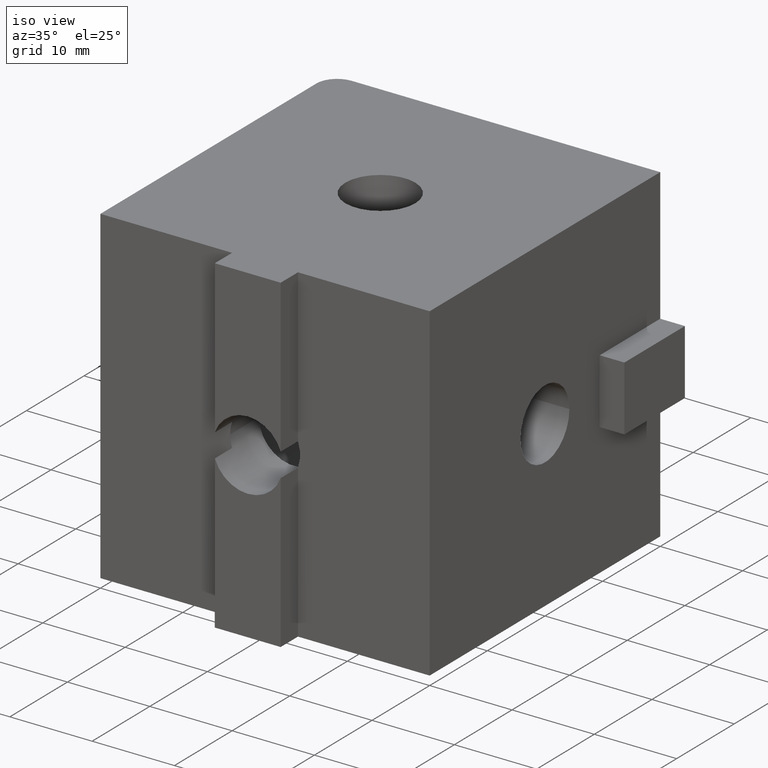
[diagram: clean part render]
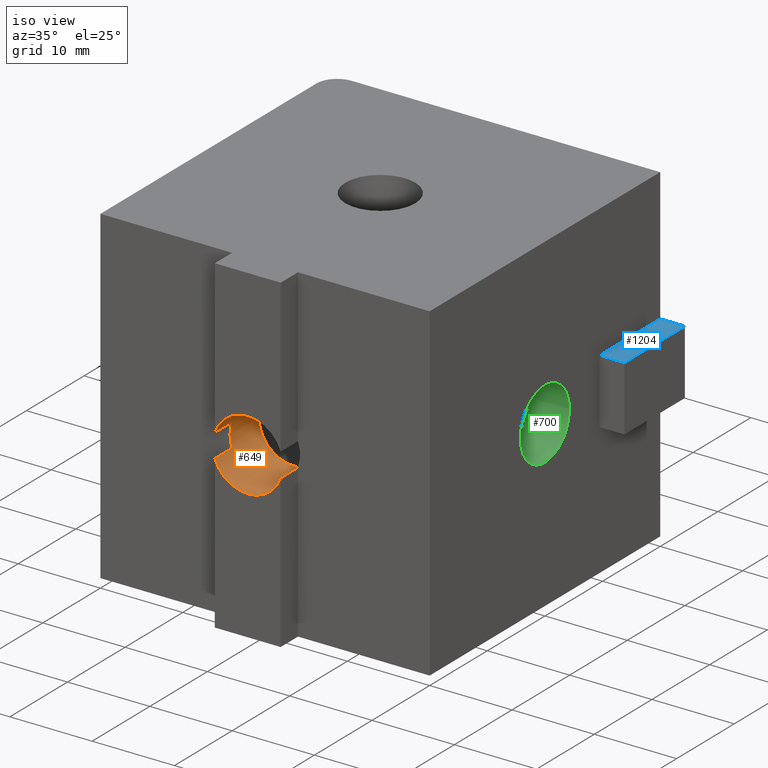
[diagram: same view with three faces highlighted in distinct colors, each labeled with its STEP entity id]
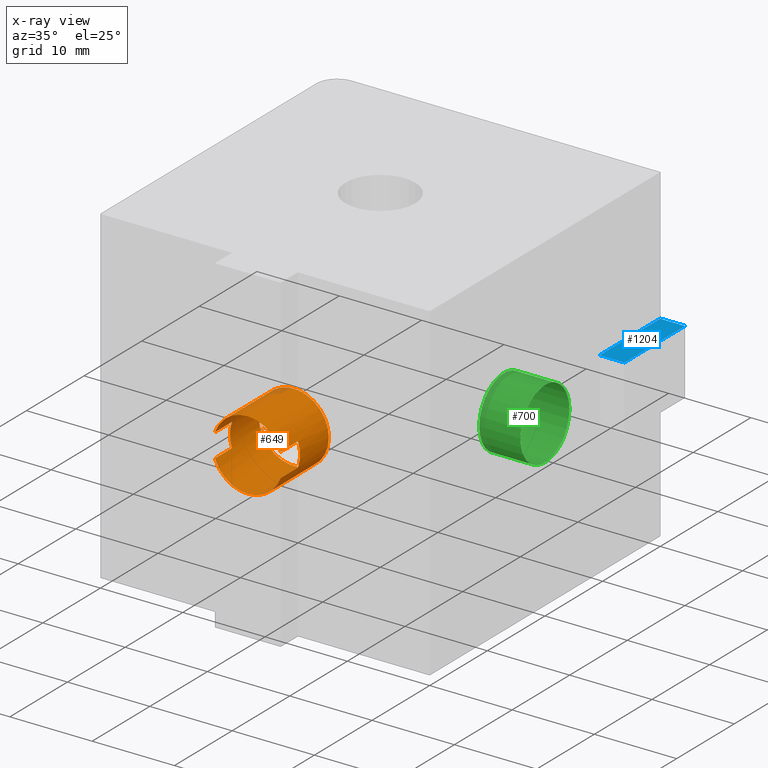
[diagram: x-ray of the same camera — body ghosted, the three highlighted faces saturated]
A machine part, iso view with three faces highlighted in distinct colors.
The next image is the same camera in x-ray (body ghosted, the three faces saturated) — at least one of them is partly hidden behind the body in this view.
Their STEP definitions:

[orange] entity #649 — the highlighted cylindrical surface (bore or boss wall) has radius 4.25 mm, axis along (0, 1, 0).
#17=CARTESIAN_POINT('',(-3.999999111984067,-20.0,18.563855217114725));
#18=VERTEX_POINT('',#17);
#25=CARTESIAN_POINT('',(-4.249999056483006,-20.000000000000057,19.999995559920080));
#26=VERTEX_POINT('',#25);
#27=CARTESIAN_POINT('',(0.0,-20.000000000000057,19.999995559920080));
#28=DIRECTION('',(0.0,1.0,0.0));
#29=DIRECTION('',(-1.0,0.0,0.0));
#30=AXIS2_PLACEMENT_3D('',#27,#28,#29);
#31=CIRCLE('',#30,4.249999056483006);
#32=EDGE_CURVE('',#18,#26,#31,.T.);
#34=CARTESIAN_POINT('',(-3.999999111984067,-20.0,21.436135902725436));
#35=VERTEX_POINT('',#34);
#36=CARTESIAN_POINT('',(0.0,-20.000000000000057,19.999995559920080));
#37=DIRECTION('',(0.0,1.0,0.0));
#38=DIRECTION('',(-1.0,0.0,0.0));
#39=AXIS2_PLACEMENT_3D('',#36,#37,#38);
#40=CIRCLE('',#39,4.249999056483006);
#41=EDGE_CURVE('',#26,#35,#40,.T.);
#81=CARTESIAN_POINT('',(-3.999999111984067,-22.999999333988058,18.563855217114725));
#82=VERTEX_POINT('',#81);
#89=CARTESIAN_POINT('',(-3.999999111984067,-22.999999333988058,18.563855217114714));
#90=DIRECTION('',(0.0,1.0,0.0));
#91=VECTOR('',#90,2.999999333988058);
#92=LINE('',#89,#91);
#93=EDGE_CURVE('',#82,#18,#92,.T.);
#105=CARTESIAN_POINT('',(-3.999999111984067,-22.999999333988058,21.436135902725436));
#106=VERTEX_POINT('',#105);
#107=CARTESIAN_POINT('',(-3.999999111984067,-20.0,21.436135902725447));
#108=DIRECTION('',(0.0,-1.0,0.0));
#109=VECTOR('',#108,2.999999333988058);
#110=LINE('',#107,#109);
#111=EDGE_CURVE('',#35,#106,#110,.T.);
#143=CARTESIAN_POINT('',(3.999999111983840,-22.999999333988058,18.563855217114092));
#144=VERTEX_POINT('',#143);
#151=CARTESIAN_POINT('',(0.0,-22.999999333988058,19.999995559920080));
#152=DIRECTION('',(0.0,1.0,0.0));
#153=DIRECTION('',(-1.0,0.0,0.0));
#154=AXIS2_PLACEMENT_3D('',#151,#152,#153);
#155=CIRCLE('',#154,4.249999056483006);
#156=EDGE_CURVE('',#144,#82,#155,.T.);
#168=CARTESIAN_POINT('',(3.999999111983840,-22.999999333988058,21.436135902726068));
#169=VERTEX_POINT('',#168);
#170=CARTESIAN_POINT('',(0.0,-22.999999333988058,19.999995559920080));
#171=DIRECTION('',(0.0,1.0,0.0));
#172=DIRECTION('',(-1.0,0.0,0.0));
#173=AXIS2_PLACEMENT_3D('',#170,#171,#172);
#174=CIRCLE('',#173,4.249999056483006);
#175=EDGE_CURVE('',#106,#169,#174,.T.);
#207=CARTESIAN_POINT('',(3.999999111983840,-20.000000000000057,18.563855217114092));
#208=VERTEX_POINT('',#207);
#215=CARTESIAN_POINT('',(3.999999111983840,-20.000000000000057,18.563855217114082));
#216=DIRECTION('',(0.0,-1.0,0.0));
#217=VECTOR('',#216,2.999999333988001);
#218=LINE('',#215,#217);
#219=EDGE_CURVE('',#208,#144,#218,.T.);
#231=CARTESIAN_POINT('',(3.999999111983840,-20.000000000000057,21.436135902726068));
#232=VERTEX_POINT('',#231);
#233=CARTESIAN_POINT('',(3.999999111983840,-22.999999333988058,21.436135902726079));
#234=DIRECTION('',(0.0,1.0,0.0));
#235=VECTOR('',#234,2.999999333988001);
#236=LINE('',#233,#235);
#237=EDGE_CURVE('',#169,#232,#236,.T.);
#261=CARTESIAN_POINT('',(0.0,-20.000000000000057,19.999995559920080));
#262=DIRECTION('',(0.0,1.0,0.0));
#263=DIRECTION('',(-1.0,0.0,0.0));
#264=AXIS2_PLACEMENT_3D('',#261,#262,#263);
#265=CIRCLE('',#264,4.249999056483006);
#266=EDGE_CURVE('',#232,#208,#265,.T.);
#608=CARTESIAN_POINT('',(0.0,19.999991119839819,19.999995559920080));
#609=DIRECTION('',(0.0,1.0,0.0));
#610=DIRECTION('',(-1.0,0.0,0.0));
#611=AXIS2_PLACEMENT_3D('',#608,#609,#610);
#612=CYLINDRICAL_SURFACE('',#611,4.249999056483006);
#613=ORIENTED_EDGE('',*,*,#219,.F.);
#614=ORIENTED_EDGE('',*,*,#266,.F.);
#615=ORIENTED_EDGE('',*,*,#237,.F.);
#616=ORIENTED_EDGE('',*,*,#175,.F.);
#617=ORIENTED_EDGE('',*,*,#111,.F.);
#618=ORIENTED_EDGE('',*,*,#41,.F.);
#619=CARTESIAN_POINT('',(-4.249999056483006,-15.000001110020150,19.999995559920080));
#620=VERTEX_POINT('',#619);
#621=CARTESIAN_POINT('',(-4.249999056483006,-15.000001110020150,19.999995559920080));
#622=DIRECTION('',(0.0,-1.0,0.0));
#623=VECTOR('',#622,4.999998889979906);
#624=LINE('',#621,#623);
#625=EDGE_CURVE('',#620,#26,#624,.T.);
#626=ORIENTED_EDGE('',*,*,#625,.F.);
#627=CARTESIAN_POINT('',(4.249999056483006,-15.000001110020150,19.999995559920080));
#628=VERTEX_POINT('',#627);
#629=CARTESIAN_POINT('',(0.0,-15.000001110020150,19.999995559920080));
#630=DIRECTION('',(0.0,1.0,0.0));
#631=DIRECTION('',(-1.0,0.0,0.0));
#632=AXIS2_PLACEMENT_3D('',#629,#630,#631);
#633=CIRCLE('',#632,4.249999056483006);
#634=EDGE_CURVE('',#620,#628,#633,.T.);
#635=ORIENTED_EDGE('',*,*,#634,.T.);
#636=CARTESIAN_POINT('',(0.0,-15.000001110020150,19.999995559920080));
#637=DIRECTION('',(0.0,1.0,0.0));
#638=DIRECTION('',(-1.0,0.0,0.0));
#639=AXIS2_PLACEMENT_3D('',#636,#637,#638);
#640=CIRCLE('',#639,4.249999056483006);
#641=EDGE_CURVE('',#628,#620,#640,.T.);
#642=ORIENTED_EDGE('',*,*,#641,.T.);
#643=ORIENTED_EDGE('',*,*,#625,.T.);
#644=ORIENTED_EDGE('',*,*,#32,.F.);
#645=ORIENTED_EDGE('',*,*,#93,.F.);
#646=ORIENTED_EDGE('',*,*,#156,.F.);
#647=EDGE_LOOP('',(#613,#614,#615,#616,#617,#618,#626,#635,#642,#643,#644,#645,#646));
#648=FACE_OUTER_BOUND('',#647,.T.);
#649=ADVANCED_FACE('',(#648),#612,.F.);

[blue] entity #1204 — the highlighted planar face has unit normal (0, 0, 1).
#302=CARTESIAN_POINT('',(19.999993649920270,9.499993450882130,23.902821791854763));
#303=VERTEX_POINT('',#302);
#318=CARTESIAN_POINT('',(22.999992983908470,9.499993450882130,23.902821791854763));
#319=VERTEX_POINT('',#318);
#326=CARTESIAN_POINT('',(19.999993649920270,9.499993450882130,23.902821791854763));
#327=DIRECTION('',(1.0,0.0,0.0));
#328=VECTOR('',#327,2.999999333988200);
#329=LINE('',#326,#328);
#330=EDGE_CURVE('',#303,#319,#329,.T.);
#348=CARTESIAN_POINT('',(22.999992983908470,19.999991119839819,23.902821791854763));
#349=VERTEX_POINT('',#348);
#356=CARTESIAN_POINT('',(22.999992983908470,9.499993450882130,23.902821791854763));
#357=DIRECTION('',(0.0,1.0,0.0));
#358=VECTOR('',#357,10.499997668957690);
#359=LINE('',#356,#358);
#360=EDGE_CURVE('',#319,#349,#359,.T.);
#389=CARTESIAN_POINT('',(19.999993649920242,19.999991119839819,23.902821791854763));
#390=VERTEX_POINT('',#389);
#397=CARTESIAN_POINT('',(22.999992983908470,19.999991119839819,23.902821791854763));
#398=DIRECTION('',(-1.0,0.0,0.0));
#399=VECTOR('',#398,2.999999333988228);
#400=LINE('',#397,#399);
#401=EDGE_CURVE('',#349,#390,#400,.T.);
#1188=CARTESIAN_POINT('',(19.999993649920242,-20.000000000000057,23.902821791854763));
#1189=DIRECTION('',(0.0,0.0,1.0));
#1190=DIRECTION('',(1.0,0.0,0.0));
#1191=AXIS2_PLACEMENT_3D('',#1188,#1189,#1190);
#1192=PLANE('',#1191);
#1193=ORIENTED_EDGE('',*,*,#330,.T.);
#1194=ORIENTED_EDGE('',*,*,#360,.T.);
#1195=ORIENTED_EDGE('',*,*,#401,.T.);
#1196=CARTESIAN_POINT('',(19.999993649920242,9.499993450882130,23.902821791854763));
#1197=DIRECTION('',(0.0,1.0,0.0));
#1198=VECTOR('',#1197,10.499997668957690);
#1199=LINE('',#1196,#1198);
#1200=EDGE_CURVE('',#303,#390,#1199,.T.);
#1201=ORIENTED_EDGE('',*,*,#1200,.F.);
#1202=EDGE_LOOP('',(#1193,#1194,#1195,#1201));
#1203=FACE_OUTER_BOUND('',#1202,.T.);
#1204=ADVANCED_FACE('',(#1203),#1192,.T.);

[green] entity #700 — the highlighted cylindrical surface (bore or boss wall) has radius 4.25 mm, axis along (1, -0, 0).
#650=CARTESIAN_POINT('',(19.999993649920270,-5.684342E-014,19.999995559920002));
#651=DIRECTION('',(1.0,-9.634480E-016,0.0));
#652=DIRECTION('',(9.634480E-016,1.0,0.0));
#653=AXIS2_PLACEMENT_3D('',#650,#651,#652);
#654=CYLINDRICAL_SURFACE('',#653,4.249999056483006);
#655=CARTESIAN_POINT('',(19.999993649920270,4.249999056482949,19.999995559920002));
#656=VERTEX_POINT('',#655);
#657=CARTESIAN_POINT('',(14.999996669939833,4.249999056482949,19.999995559920002));
#658=VERTEX_POINT('',#657);
#659=CARTESIAN_POINT('',(19.999993649920270,4.249999056482949,19.999995559920002));
#660=DIRECTION('',(-1.0,0.0,0.0));
#661=VECTOR('',#660,4.999996979980441);
#662=LINE('',#659,#661);
#663=EDGE_CURVE('',#656,#658,#662,.T.);
#664=ORIENTED_EDGE('',*,*,#663,.T.);
#665=CARTESIAN_POINT('',(14.999996669939829,-4.249999056483063,19.999995559920002));
#666=VERTEX_POINT('',#665);
#667=CARTESIAN_POINT('',(14.999996669939833,-5.684342E-014,19.999995559920002));
#668=DIRECTION('',(-1.0,9.634480E-016,0.0));
#669=DIRECTION('',(9.634480E-016,1.0,0.0));
#670=AXIS2_PLACEMENT_3D('',#667,#668,#669);
#671=CIRCLE('',#670,4.249999056483006);
#672=EDGE_CURVE('',#658,#666,#671,.T.);
#673=ORIENTED_EDGE('',*,*,#672,.T.);
#674=CARTESIAN_POINT('',(14.999996669939833,-5.684342E-014,19.999995559920002));
#675=DIRECTION('',(-1.0,9.634480E-016,0.0));
#676=DIRECTION('',(9.634480E-016,1.0,0.0));
#677=AXIS2_PLACEMENT_3D('',#674,#675,#676);
#678=CIRCLE('',#677,4.249999056483006);
#679=EDGE_CURVE('',#666,#658,#678,.T.);
#680=ORIENTED_EDGE('',*,*,#679,.T.);
#681=ORIENTED_EDGE('',*,*,#663,.F.);
#682=CARTESIAN_POINT('',(19.999993649920267,-4.249999056483063,19.999995559920002));
#683=VERTEX_POINT('',#682);
#684=CARTESIAN_POINT('',(19.999993649920270,-5.684342E-014,19.999995559920002));
#685=DIRECTION('',(-1.0,9.634480E-016,0.0));
#686=DIRECTION('',(9.634480E-016,1.0,0.0));
#687=AXIS2_PLACEMENT_3D('',#684,#685,#686);
#688=CIRCLE('',#687,4.249999056483006);
#689=EDGE_CURVE('',#683,#656,#688,.T.);
#690=ORIENTED_EDGE('',*,*,#689,.F.);
#691=CARTESIAN_POINT('',(19.999993649920270,-5.684342E-014,19.999995559920002));
#692=DIRECTION('',(-1.0,9.634480E-016,0.0));
#693=DIRECTION('',(9.634480E-016,1.0,0.0));
#694=AXIS2_PLACEMENT_3D('',#691,#692,#693);
#695=CIRCLE('',#694,4.249999056483006);
#696=EDGE_CURVE('',#656,#683,#695,.T.);
#697=ORIENTED_EDGE('',*,*,#696,.F.);
#698=EDGE_LOOP('',(#664,#673,#680,#681,#690,#697));
#699=FACE_OUTER_BOUND('',#698,.T.);
#700=ADVANCED_FACE('',(#699),#654,.F.);